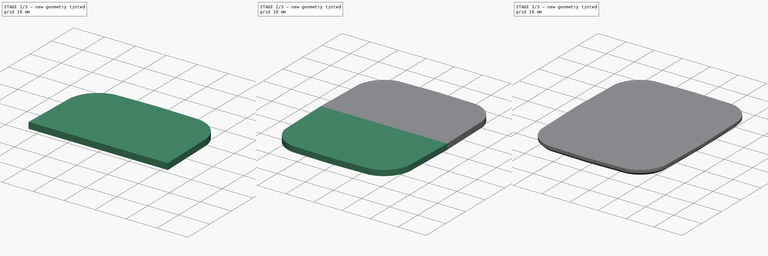
[diagram: build sequence overview — one tinted view per stage of 3, left to right]
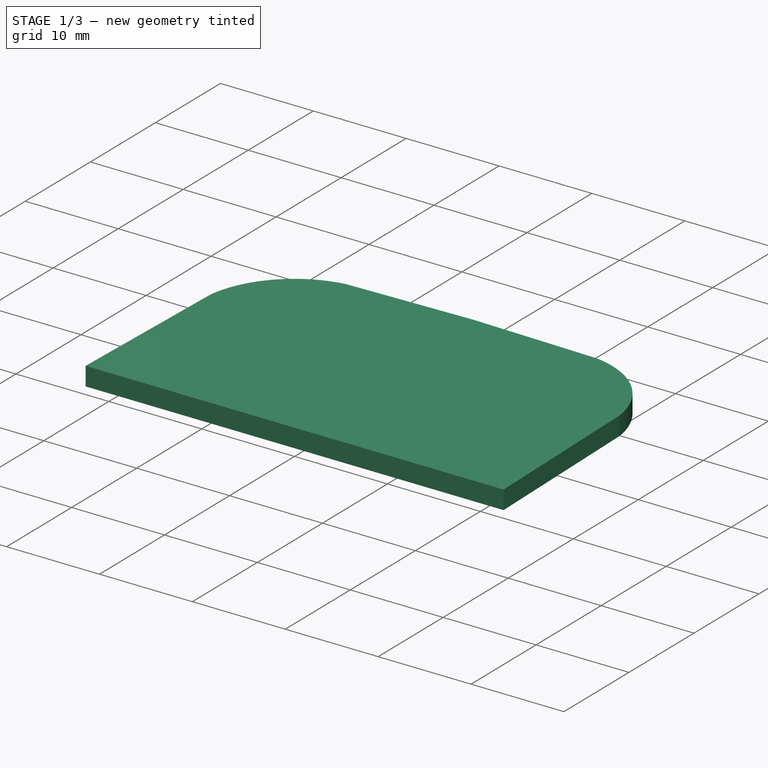
[diagram: stage 1 of 3 — iso view after this stage's code; geometry added in this stage tinted green]
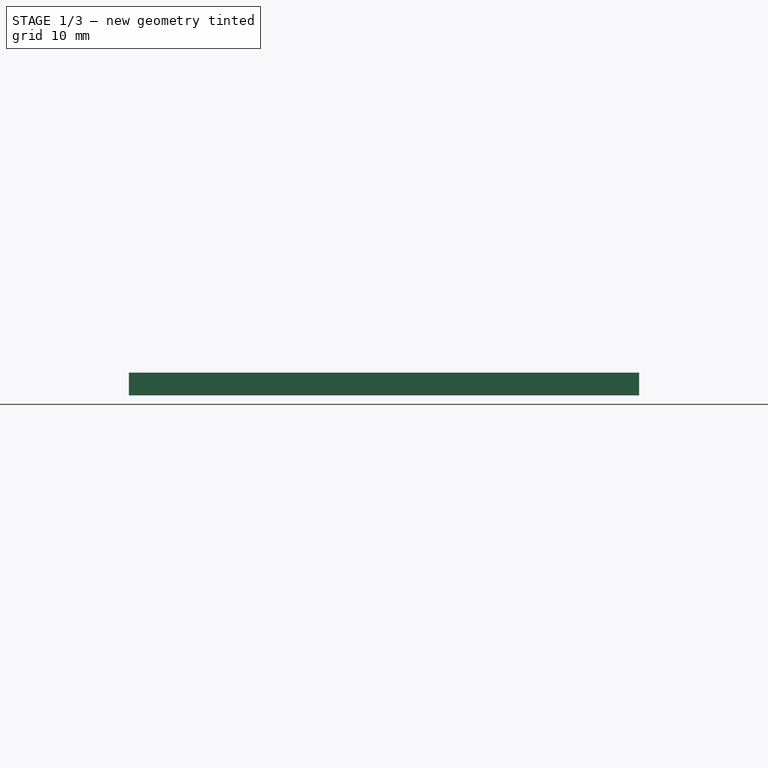
[diagram: stage 1 of 3 — front view after this stage's code; geometry added in this stage tinted green]
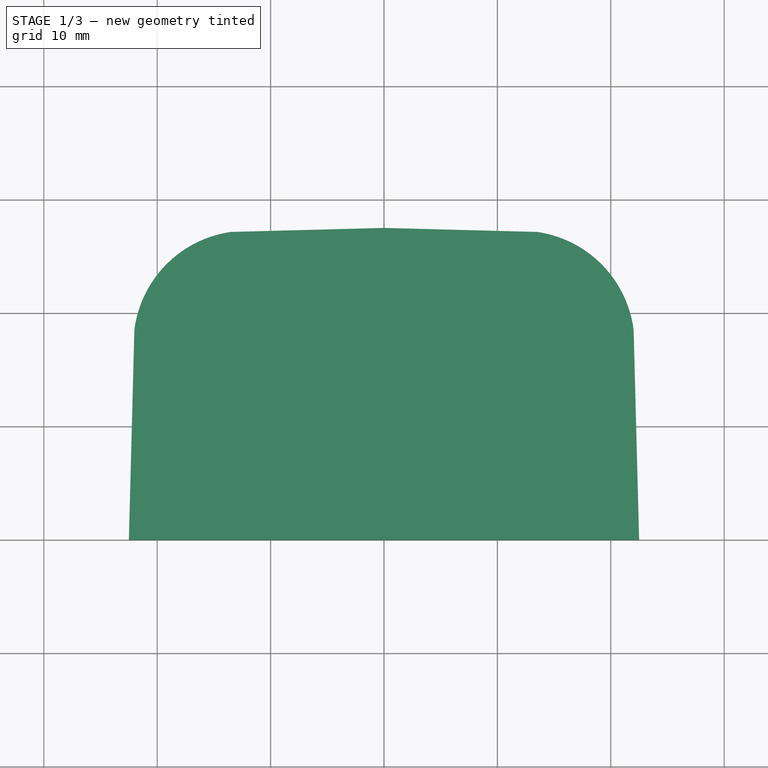
[diagram: stage 1 of 3 — top view after this stage's code; geometry added in this stage tinted green]
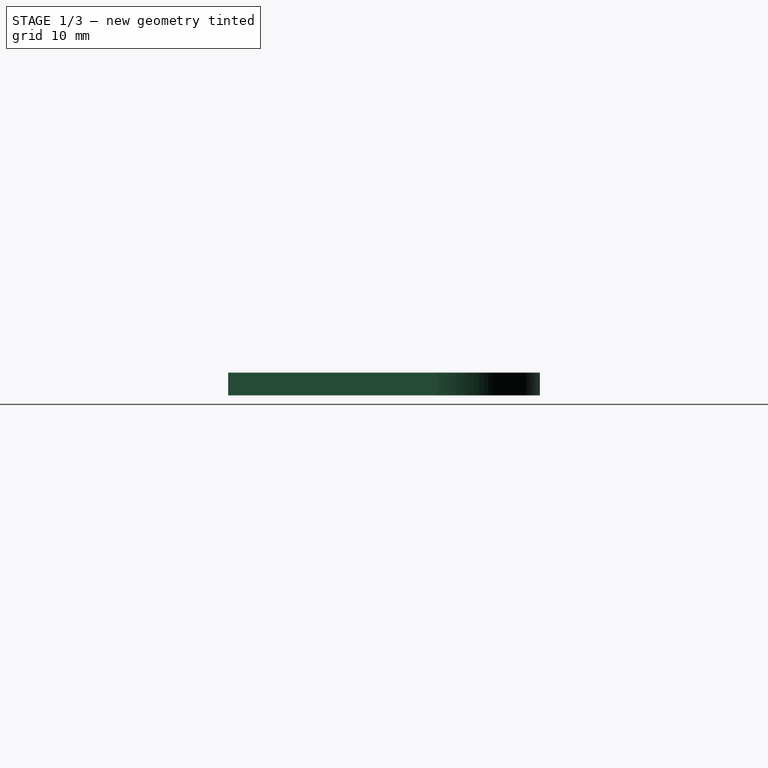
[diagram: stage 1 of 3 — right view after this stage's code; geometry added in this stage tinted green]
FCSTD DOCUMENT  (FreeCAD 1.0R39285 (Git))
Label: lcd_cover_glass
License: All rights reserved
LicenseURL: https://en.wikipedia.org/wiki/All_rights_reserved
objects: PartDesign::Mirrored×2, PartDesign::Chamfer×2, Sketcher::SketchObject×1, PartDesign::Pad×1, PartDesign::Body×1
note: 16 computed .brp shape members not serialized (recipe doc carries the construction recipe); baked Part::Feature solids carry a one-line shape summary decoded from their .brp

FEATURE [Sketcher::SketchObject] Sketch
  ArcFitTolerance = 1e-06
  AttachmentSupport = -> [XY_Plane]
  FullyConstrained = true
  MakeInternals = false
  MapMode = 5
  sketch-geometry (10):
    g0: LineSegment StartX=0 StartY=0 StartZ=0 EndX=-20.5 EndY=0 EndZ=0
    g1: LineSegment StartX=-20.5 StartY=0 StartZ=0 EndX=-22.5 EndY=0 EndZ=0
    g2: LineSegment StartX=0 StartY=0 StartZ=0 EndX=0 EndY=25.5 EndZ=0
    g3: LineSegment StartX=0 StartY=25.5 StartZ=0 EndX=0 EndY=27.5 EndZ=0
    g4: LineSegment [constr] StartX=-22.5 StartY=0 StartZ=0 EndX=-22.5 EndY=27.5 EndZ=0
    g5: LineSegment [constr] StartX=0 StartY=27.5 StartZ=0 EndX=-22.5 EndY=27.5 EndZ=0
    g6: LineSegment [constr] StartX=-22.5 StartY=27.5 StartZ=0 EndX=-3.6e-15 EndY=0 EndZ=0
    g7: LineSegment StartX=-22.5 StartY=0 StartZ=0 EndX=-22.0156 EndY=18.5 EndZ=0
    g8: LineSegment StartX=0 StartY=27.5 StartZ=0 EndX=-13.5 EndY=27.1465 EndZ=0
    g9: ArcOfCircle CenterX=-12.0945 CenterY=17.2458 CenterZ=0 NormalX=0 NormalY=0 NormalZ=1 AngleXU=0 Radius=10 StartAngle=1.71181 EndAngle=3.01584
  constraints (28):
    c: Distance(g0) = 20.5
    c: Coincident(g0,g-1)
    c: PointOnObject(g0,g-1)
    c: Coincident(g1,g0)
    c: PointOnObject(g1,g-1)
    c: DistanceX(g1,g1) = 2
    c: Coincident(g0,g2)
    c: PointOnObject(g2,g-2)
    c: DistanceY(g2,g2) = 25.5
    c: Coincident(g2,g3)
    c: PointOnObject(g3,g-2)
    c: DistanceY(g3,g3) = 2
    c: Coincident(g4,g1)
    c: Vertical(g4)
    c: Coincident(g5,g3)
    c: Coincident(g5,g4)
    c: Horizontal(g5)
    c: Coincident(g6,g4)
    c: Coincident(g6,g0)
    c: Coincident(g7,g1)
    c: Angle(g1,g7) = 1.54462
    c: Coincident(g8,g3)
    c: Angle(g8,g5) = 3.11541
    c: DistanceX(g8,g8) = 13.5
    c: DistanceY(g7,g7) = 18.5
    c: Coincident(g9,g7)
    c: Coincident(g9,g8)
    c: Radius(g9) = 10
FEATURE [PartDesign::Pad] Pad
  Direction = (0,0,1)
  Length = 2
  Length2 = 10
  Profile = -> Sketch
  ReferenceAxis = -> Sketch [N_Axis]
  Refine = true
  Suppressed = false
  Type = 0
FEATURE [PartDesign::Mirrored] Mirrored
  BaseFeature = -> Pad
  MirrorPlane = -> Sketch [V_Axis]
  Originals = -> [Pad]
  Refine = true
  Suppressed = false
  TransformMode = 0
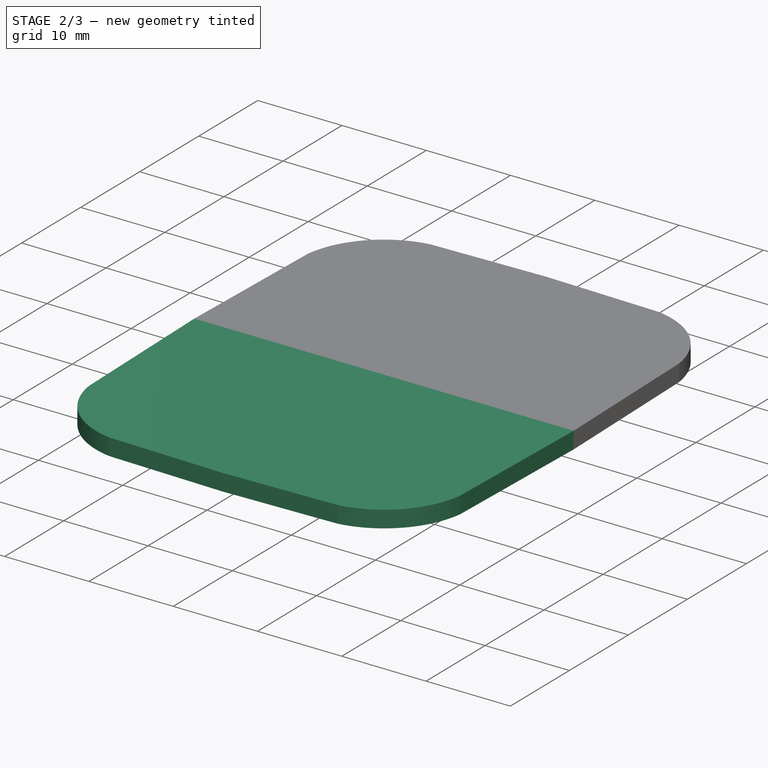
[diagram: stage 2 of 3 — iso view after this stage's code; geometry added in this stage tinted green]
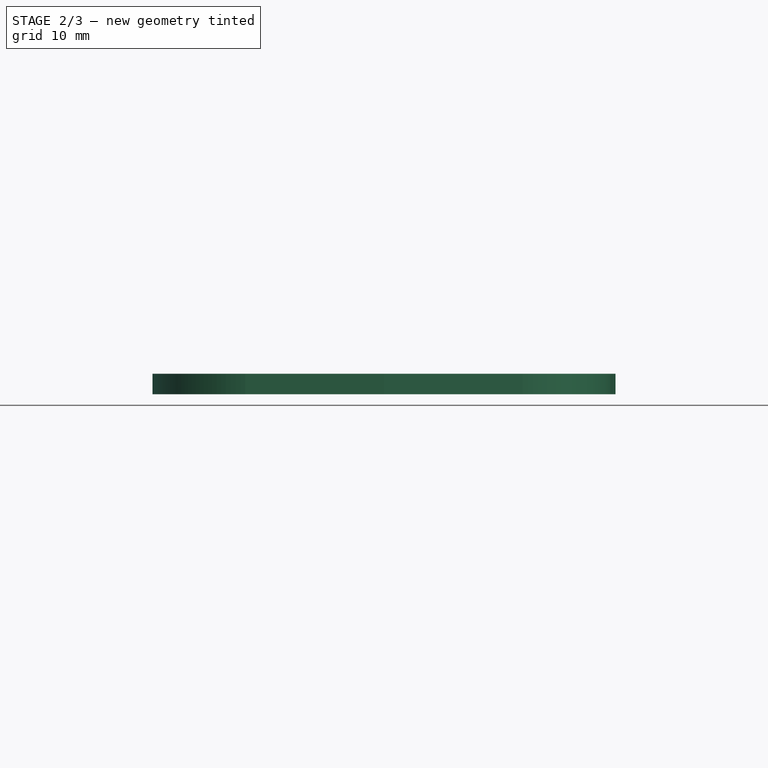
[diagram: stage 2 of 3 — front view after this stage's code; geometry added in this stage tinted green]
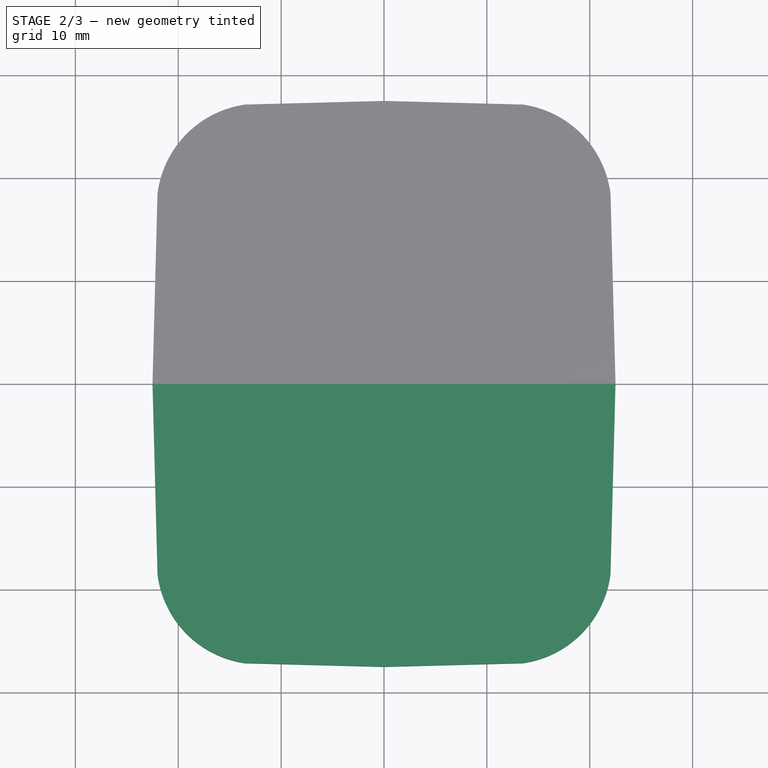
[diagram: stage 2 of 3 — top view after this stage's code; geometry added in this stage tinted green]
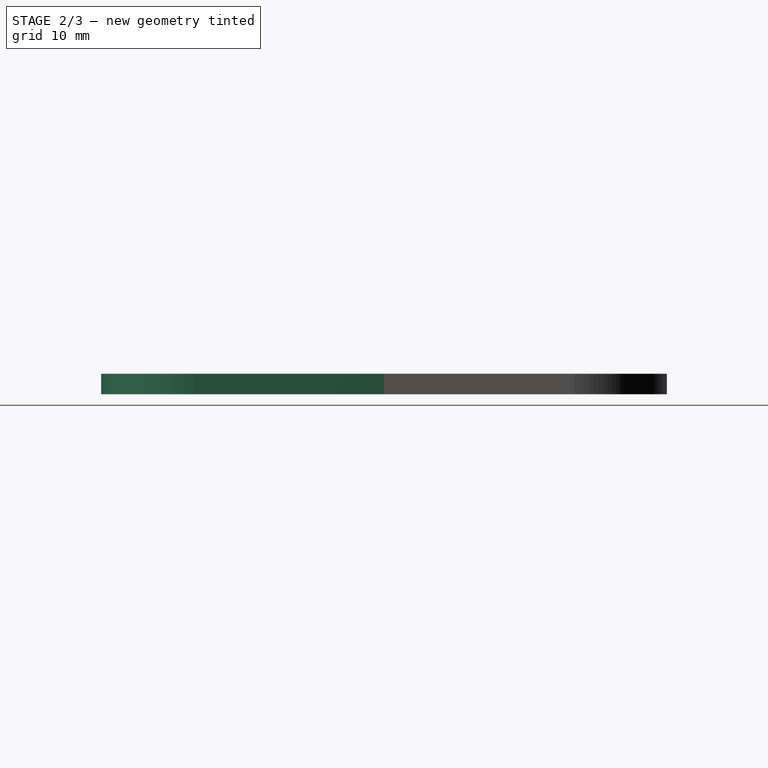
[diagram: stage 2 of 3 — right view after this stage's code; geometry added in this stage tinted green]
FEATURE [PartDesign::Mirrored] Mirrored001
  BaseFeature = -> Mirrored
  MirrorPlane = -> XZ_Plane
  Originals = -> [Mirrored]
  Refine = true
  Suppressed = false
  TransformMode = 1
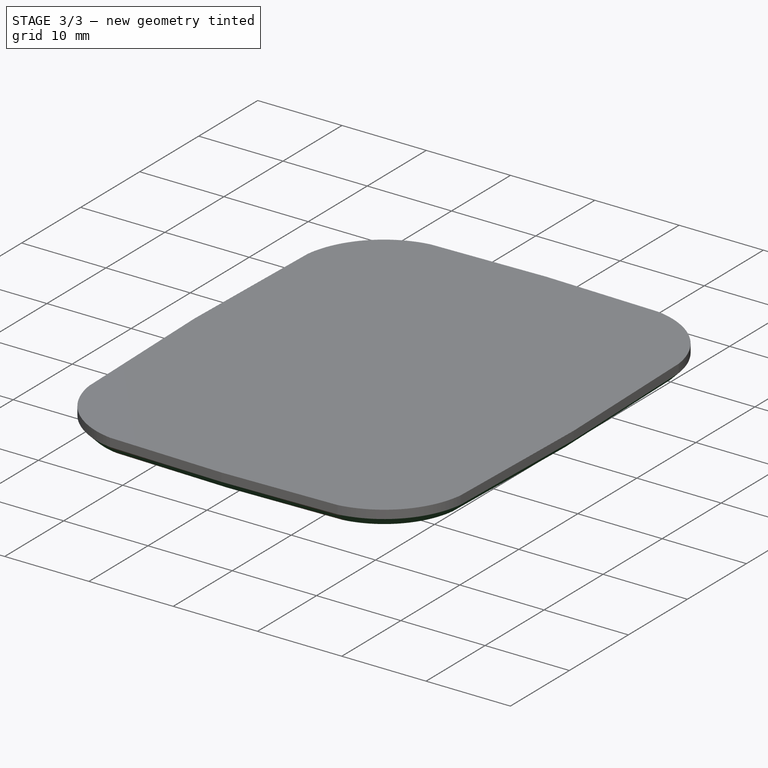
[diagram: stage 3 of 3 — iso view after this stage's code; geometry added in this stage tinted green]
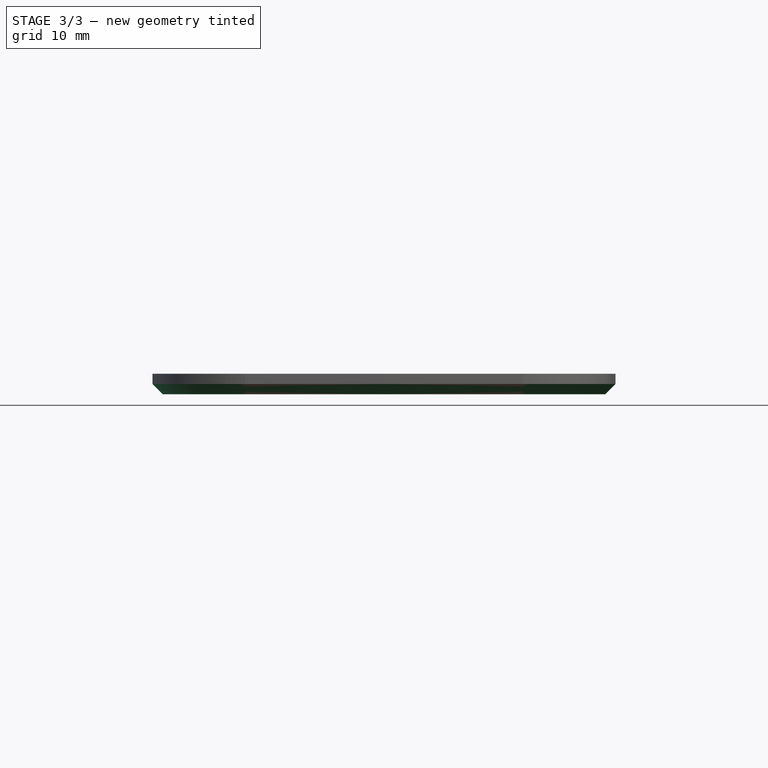
[diagram: stage 3 of 3 — front view after this stage's code; geometry added in this stage tinted green]
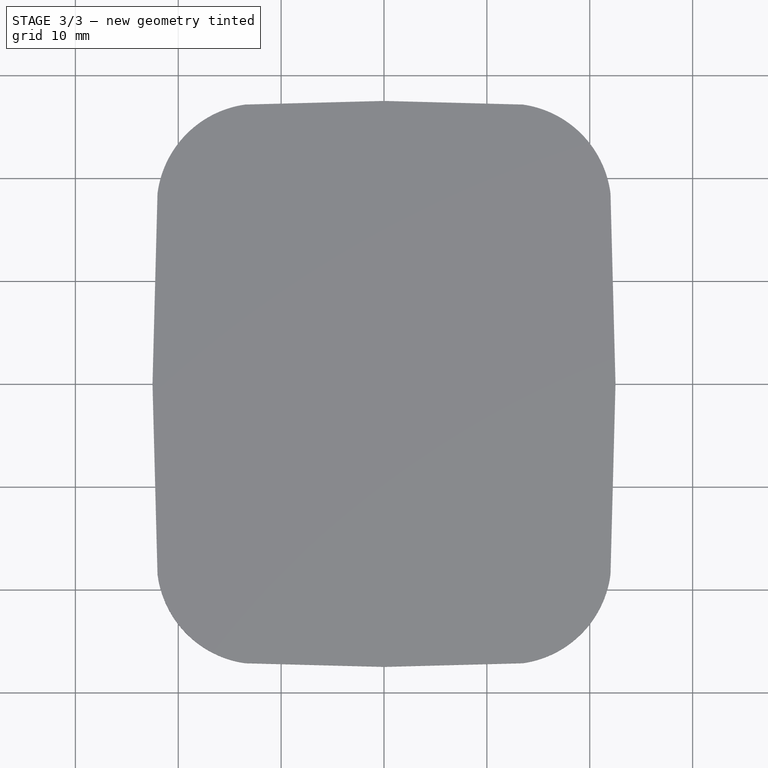
[diagram: stage 3 of 3 — top view after this stage's code; geometry added in this stage tinted green]
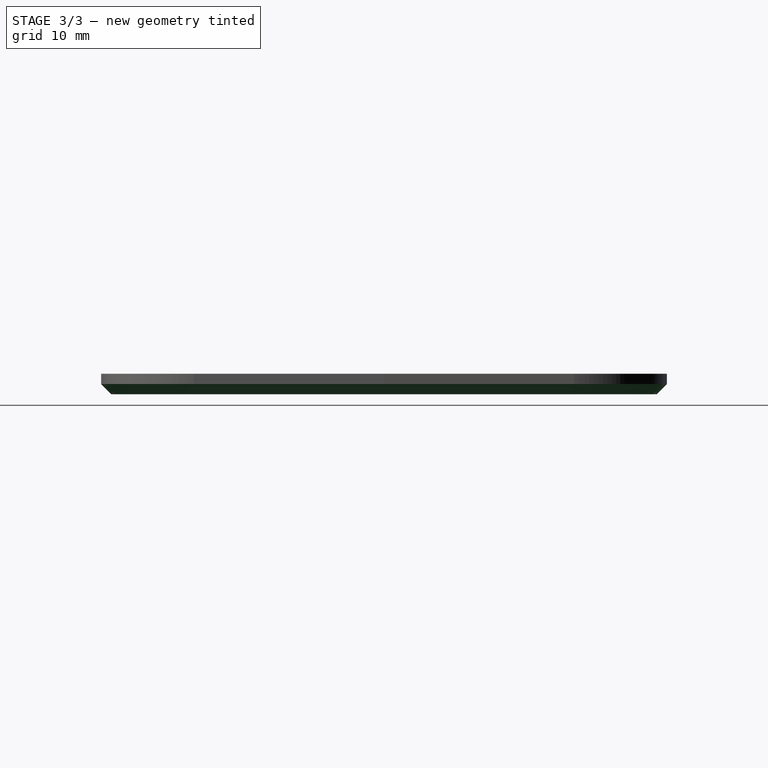
[diagram: stage 3 of 3 — right view after this stage's code; geometry added in this stage tinted green]
FEATURE [PartDesign::Chamfer] Chamfer
  Angle = 45
  Base = -> Mirrored001 [Edge30,Edge18]
  BaseFeature = -> Mirrored001
  ChamferType = 0
  FlipDirection = false
  Refine = true
  Size = 1
  Size2 = 1
  SupportTransform = false
  Suppressed = false
  UseAllEdges = false
FEATURE [PartDesign::Chamfer] Chamfer001
  Angle = 45
  Base = -> Chamfer [Edge4,Edge30]
  BaseFeature = -> Chamfer
  ChamferType = 0
  FlipDirection = false
  Refine = true
  Size = 1
  Size2 = 1
  SupportTransform = false
  Suppressed = false
  UseAllEdges = false
FEATURE [PartDesign::Body] Body
  AllowCompound = false
  Group = -> [Sketch,Pad,Mirrored,Mirrored001,Chamfer,Chamfer001]
  Origin = -> Origin
  Tip = -> Chamfer001
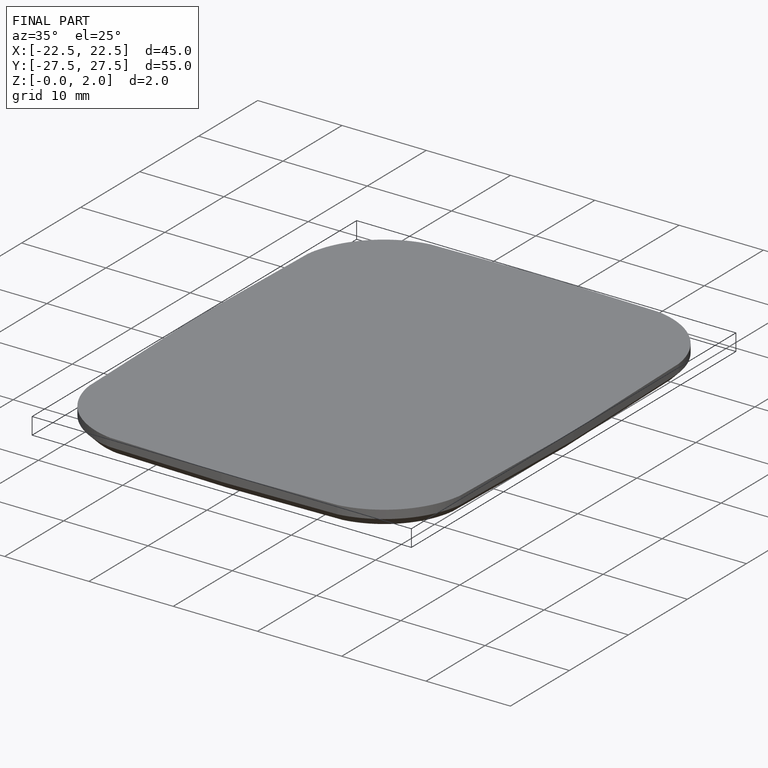
[diagram: finished part — iso view with bounding-box wireframe]
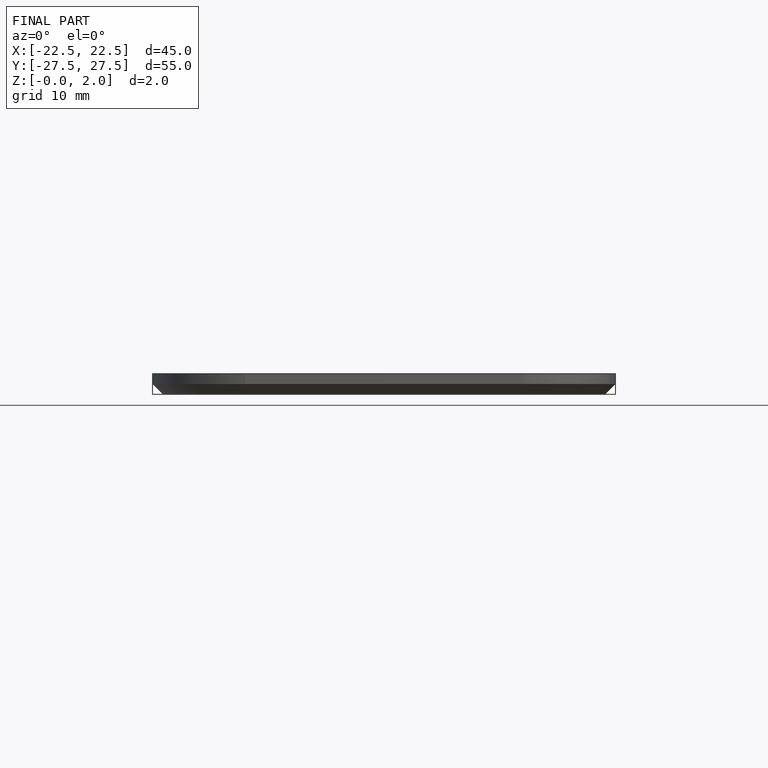
[diagram: finished part — front view with bounding-box wireframe]
